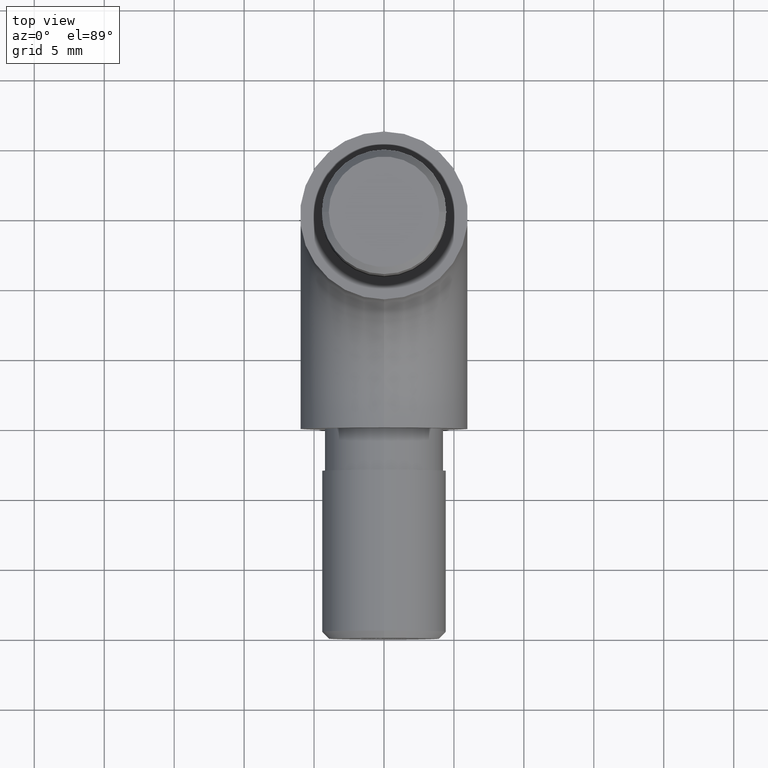
[diagram: clean part render]
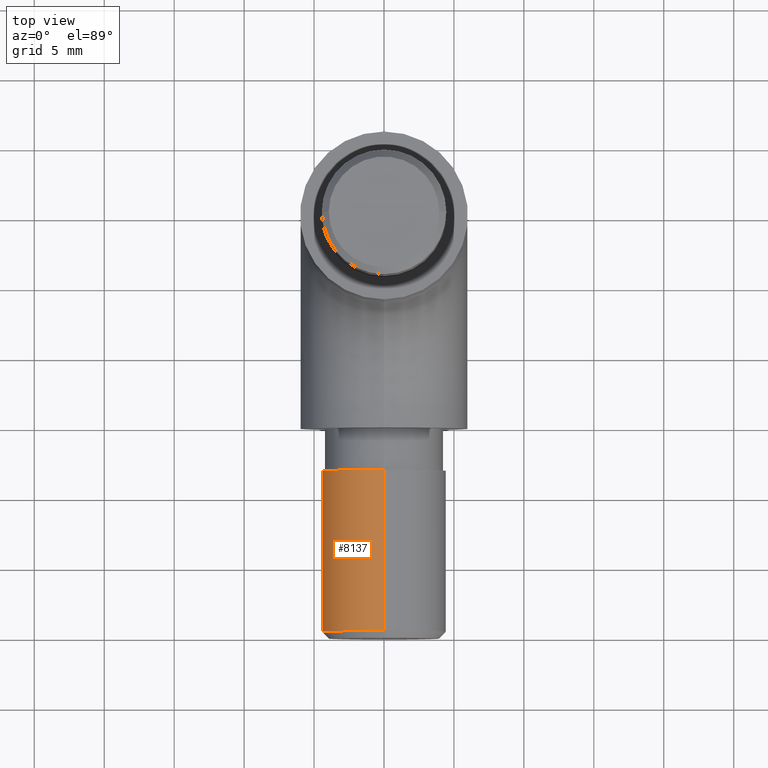
[diagram: same view with one face highlighted and labeled with its STEP entity id]
A machine part, top view. The second image highlights one B-rep face of the part: STEP entity #8137.
In plain terms, the highlighted cylindrical surface (partial cylindrical patch) has radius 4.45 mm, axis along (-0, 1, 0).
Its self-contained STEP definition (entity closure, byte-faithful):
#458 = AXIS2_PLACEMENT_3D ( 'NONE', #5342, #10133, #4180 ) ;
#856 = VERTEX_POINT ( 'NONE', #6616 ) ;
#1102 = LINE ( 'NONE', #9302, #15406 ) ;
#1552 = VERTEX_POINT ( 'NONE', #3687 ) ;
#1965 = EDGE_CURVE ( 'NONE', #4988, #856, #6623, .T. ) ;
#3094 = CARTESIAN_POINT ( 'NONE',  ( 0.000000000000000000, -5.449678256205724742E-16, 4.450000000000001066 ) ) ;
#3687 = CARTESIAN_POINT ( 'NONE',  ( 5.449678256205723756E-16, -2.999999999999999112, -4.450000000000001954 ) ) ;
#3756 = LINE ( 'NONE', #3094, #5283 ) ;
#4180 = DIRECTION ( 'NONE',  ( 0.000000000000000000, -9.745637505487676068E-17, 1.000000000000000000 ) ) ;
#4629 = CARTESIAN_POINT ( 'NONE',  ( 0.000000000000000000, -14.49999999999999822, -1.775737858763662409E-15 ) ) ;
#4988 = VERTEX_POINT ( 'NONE', #5899 ) ;
#5113 = CARTESIAN_POINT ( 'NONE',  ( 0.000000000000000000, 0.000000000000000000, 0.000000000000000000 ) ) ;
#5283 = VECTOR ( 'NONE', #8997, 1000.000000000000000 ) ;
#5330 = DIRECTION ( 'NONE',  ( 0.000000000000000000, -1.224646799147353700E-16, 1.000000000000000000 ) ) ;
#5342 = CARTESIAN_POINT ( 'NONE',  ( 0.000000000000000000, -2.999999999999999556, -3.673940397442059868E-16 ) ) ;
#5422 = ORIENTED_EDGE ( 'NONE', *, *, #14189, .T. ) ;
#5696 = CYLINDRICAL_SURFACE ( 'NONE', #9515, 4.450000000000001066 ) ;
#5899 = CARTESIAN_POINT ( 'NONE',  ( 5.449678256205723756E-16, -14.49999999999999822, -4.450000000000002842 ) ) ;
#6104 = DIRECTION ( 'NONE',  ( -0.000000000000000000, 1.000000000000000000, 1.224646799147353454E-16 ) ) ;
#6372 = EDGE_LOOP ( 'NONE', ( #10694, #9235, #5422, #11567 ) ) ;
#6374 = CIRCLE ( 'NONE', #458, 4.450000000000001954 ) ;
#6616 = CARTESIAN_POINT ( 'NONE',  ( 0.000000000000000000, -14.49999999999999822, 4.449999999999999289 ) ) ;
#6623 = CIRCLE ( 'NONE', #13393, 4.450000000000001066 ) ;
#6868 = EDGE_CURVE ( 'NONE', #4988, #1552, #1102, .T. ) ;
#6944 = CARTESIAN_POINT ( 'NONE',  ( 0.000000000000000000, -3.000000000000000000, 4.450000000000001954 ) ) ;
#7010 = FACE_OUTER_BOUND ( 'NONE', #6372, .T. ) ;
#8137 = ADVANCED_FACE ( 'NONE', ( #7010 ), #5696, .T. ) ;
#8997 = DIRECTION ( 'NONE',  ( -0.000000000000000000, 1.000000000000000000, 1.224646799147353454E-16 ) ) ;
#9235 = ORIENTED_EDGE ( 'NONE', *, *, #1965, .T. ) ;
#9302 = CARTESIAN_POINT ( 'NONE',  ( 5.449678256205722770E-16, 5.449678256205724742E-16, -4.450000000000001066 ) ) ;
#9515 = AXIS2_PLACEMENT_3D ( 'NONE', #5113, #6104, #5330 ) ;
#10133 = DIRECTION ( 'NONE',  ( -0.000000000000000000, 1.000000000000000000, 1.224646799147353454E-16 ) ) ;
#10694 = ORIENTED_EDGE ( 'NONE', *, *, #6868, .F. ) ;
#11567 = ORIENTED_EDGE ( 'NONE', *, *, #15362, .F. ) ;
#11583 = DIRECTION ( 'NONE',  ( -0.000000000000000000, 1.000000000000000000, 1.224646799147353454E-16 ) ) ;
#12935 = DIRECTION ( 'NONE',  ( -0.000000000000000000, 1.000000000000000000, 1.224646799147349263E-16 ) ) ;
#13393 = AXIS2_PLACEMENT_3D ( 'NONE', #4629, #12935, #14123 ) ;
#13562 = VERTEX_POINT ( 'NONE', #6944 ) ;
#14123 = DIRECTION ( 'NONE',  ( 0.000000000000000000, 0.000000000000000000, 1.000000000000000000 ) ) ;
#14189 = EDGE_CURVE ( 'NONE', #856, #13562, #3756, .T. ) ;
#15362 = EDGE_CURVE ( 'NONE', #1552, #13562, #6374, .T. ) ;
#15406 = VECTOR ( 'NONE', #11583, 1000.000000000000000 ) ;